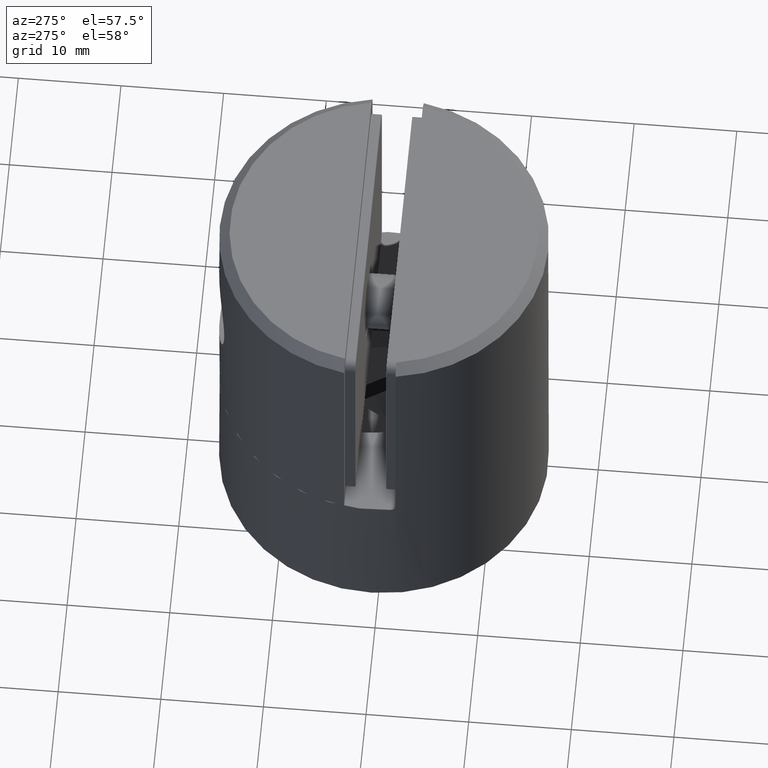
[diagram: clean part render]
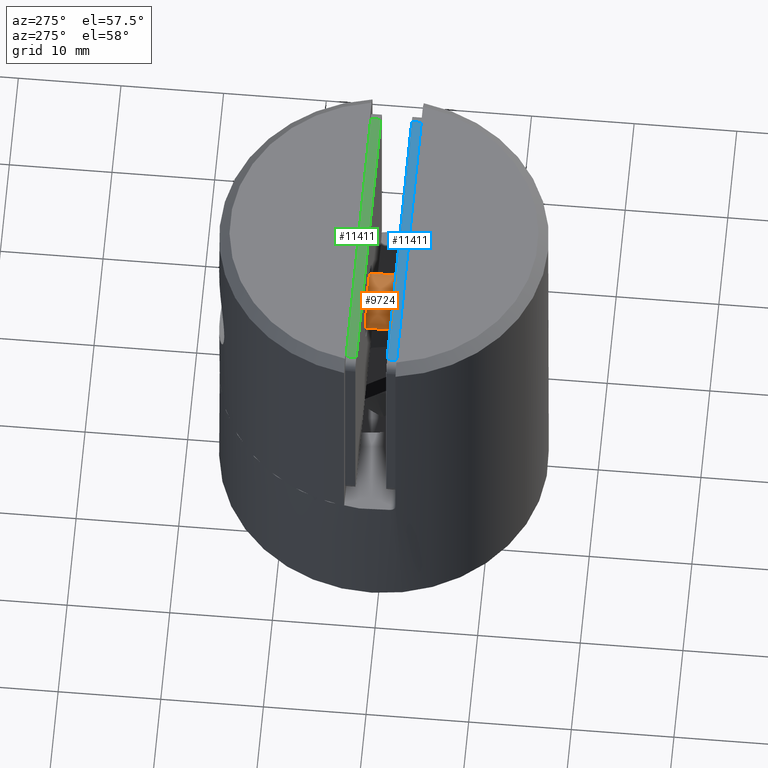
[diagram: same view with three faces highlighted in distinct colors, each labeled with its STEP entity id]
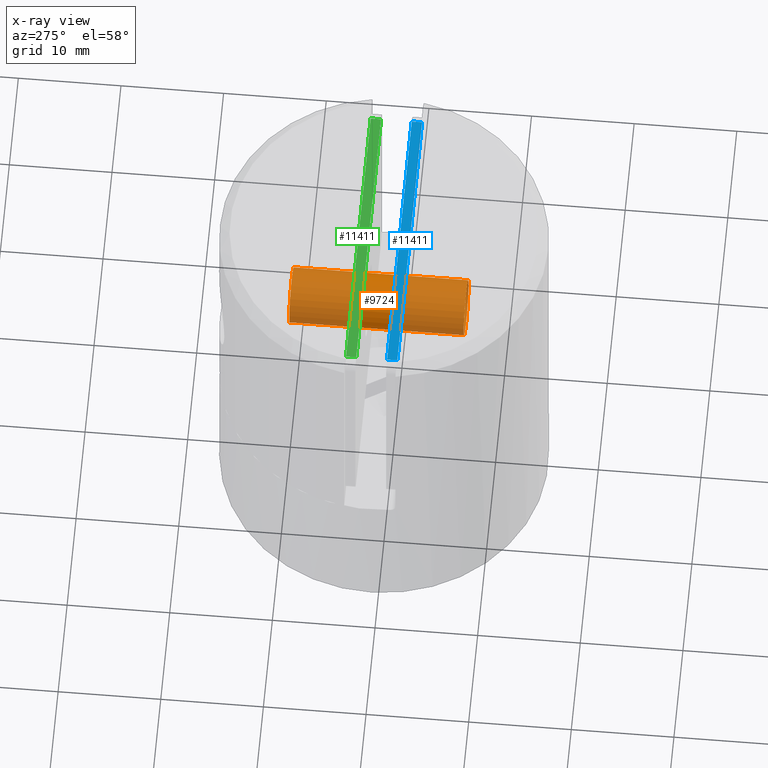
[diagram: x-ray of the same camera — body ghosted, the three highlighted faces saturated]
A machine part, auxiliary view with three faces highlighted in distinct colors.
The next image is the same camera in x-ray (body ghosted, the three faces saturated) — at least one of them is partly hidden behind the body in this view.
Their STEP definitions:

[orange] entity #9724 — the highlighted cylindrical surface (bore or boss wall) has radius 2.675 mm, axis along (0, 1, 0).
#95 = DIRECTION ( 'NONE',  ( 0.000000000000000000, 0.000000000000000000, -1.000000000000000000 ) ) ;
#767 = CIRCLE ( 'NONE', #19645, 2.675000000000001155 ) ;
#1504 = DIRECTION ( 'NONE',  ( 0.000000000000000000, 1.000000000000000000, 0.000000000000000000 ) ) ;
#1946 = EDGE_LOOP ( 'NONE', ( #10276 ) ) ;
#4737 = DIRECTION ( 'NONE',  ( -0.000000000000000000, 1.000000000000000000, -0.000000000000000000 ) ) ;
#5796 = VERTEX_POINT ( 'NONE', #15243 ) ;
#7292 = CARTESIAN_POINT ( 'NONE',  ( 0.000000000000000000, 0.000000000000000000, 0.000000000000000000 ) ) ;
#8434 = EDGE_LOOP ( 'NONE', ( #19678 ) ) ;
#9724 = ADVANCED_FACE ( 'NONE', ( #18892, #12455 ), #16999, .T. ) ;
#10276 = ORIENTED_EDGE ( 'NONE', *, *, #11548, .T. ) ;
#10484 = CIRCLE ( 'NONE', #19667, 2.675000000000001155 ) ;
#11548 = EDGE_CURVE ( 'NONE', #12959, #12959, #767, .T. ) ;
#12455 = FACE_OUTER_BOUND ( 'NONE', #1946, .T. ) ;
#12596 = AXIS2_PLACEMENT_3D ( 'NONE', #13932, #4737, #15190 ) ;
#12959 = VERTEX_POINT ( 'NONE', #16655 ) ;
#13414 = DIRECTION ( 'NONE',  ( -0.000000000000000000, -1.000000000000000000, -0.000000000000000000 ) ) ;
#13932 = CARTESIAN_POINT ( 'NONE',  ( 0.000000000000000000, -18.00000000000000000, 0.000000000000000000 ) ) ;
#15030 = EDGE_CURVE ( 'NONE', #5796, #5796, #10484, .T. ) ;
#15133 = DIRECTION ( 'NONE',  ( 0.000000000000000000, 0.000000000000000000, 1.000000000000000000 ) ) ;
#15190 = DIRECTION ( 'NONE',  ( 0.000000000000000000, 0.000000000000000000, 1.000000000000000000 ) ) ;
#15243 = CARTESIAN_POINT ( 'NONE',  ( 0.000000000000000000, -16.99999999999999645, -2.675000000000001155 ) ) ;
#16556 = CARTESIAN_POINT ( 'NONE',  ( 0.000000000000000000, -16.99999999999999645, 0.000000000000000000 ) ) ;
#16655 = CARTESIAN_POINT ( 'NONE',  ( 0.000000000000000000, 0.000000000000000000, 2.675000000000001155 ) ) ;
#16999 = CYLINDRICAL_SURFACE ( 'NONE', #12596, 2.675000000000001155 ) ;
#18892 = FACE_OUTER_BOUND ( 'NONE', #8434, .T. ) ;
#19645 = AXIS2_PLACEMENT_3D ( 'NONE', #7292, #13414, #15133 ) ;
#19667 = AXIS2_PLACEMENT_3D ( 'NONE', #16556, #1504, #95 ) ;
#19678 = ORIENTED_EDGE ( 'NONE', *, *, #15030, .T. ) ;

[blue] entity #11411 — the highlighted planar face has unit normal (-0, 0, -1).
#1528 = AXIS2_PLACEMENT_3D ( 'NONE', #12814, #6687, #11401 ) ;
#2026 = EDGE_CURVE ( 'NONE', #5939, #11836, #9164, .T. ) ;
#2289 = VERTEX_POINT ( 'NONE', #2313 ) ;
#2313 = CARTESIAN_POINT ( 'NONE',  ( -13.74999999999999822, 0.000000000000000000, 11.24999999999999822 ) ) ;
#2549 = CARTESIAN_POINT ( 'NONE',  ( 13.74999999999999822, 1.000000000000000000, 11.24999999999999822 ) ) ;
#3532 = LINE ( 'NONE', #18861, #9003 ) ;
#3782 = ORIENTED_EDGE ( 'NONE', *, *, #15815, .T. ) ;
#4570 = EDGE_CURVE ( 'NONE', #17247, #11836, #3532, .T. ) ;
#5939 = VERTEX_POINT ( 'NONE', #11631 ) ;
#6274 = DIRECTION ( 'NONE',  ( 1.000000000000000000, 0.000000000000000000, 0.000000000000000000 ) ) ;
#6687 = DIRECTION ( 'NONE',  ( 0.000000000000000000, 0.000000000000000000, -1.000000000000000000 ) ) ;
#6967 = ORIENTED_EDGE ( 'NONE', *, *, #4570, .F. ) ;
#7047 = DIRECTION ( 'NONE',  ( 0.000000000000000000, -1.000000000000000000, 0.000000000000000000 ) ) ;
#8682 = EDGE_CURVE ( 'NONE', #2289, #5939, #12240, .T. ) ;
#8780 = ORIENTED_EDGE ( 'NONE', *, *, #8682, .T. ) ;
#9003 = VECTOR ( 'NONE', #14518, 1000.000000000000000 ) ;
#9164 = LINE ( 'NONE', #2549, #14860 ) ;
#9727 = CARTESIAN_POINT ( 'NONE',  ( 13.74999999999999822, 1.000000000000000000, 11.24999999999999822 ) ) ;
#11401 = DIRECTION ( 'NONE',  ( -1.000000000000000000, 0.000000000000000000, -0.000000000000000000 ) ) ;
#11411 = ADVANCED_FACE ( 'NONE', ( #19103 ), #12890, .F. ) ;
#11418 = CARTESIAN_POINT ( 'NONE',  ( -13.74999999999999822, 1.000000000000000000, 11.24999999999999822 ) ) ;
#11631 = CARTESIAN_POINT ( 'NONE',  ( 13.74999999999999822, 0.000000000000000000, 11.24999999999999822 ) ) ;
#11761 = CARTESIAN_POINT ( 'NONE',  ( -13.74999999999999822, 1.000000000000000000, 11.24999999999999822 ) ) ;
#11836 = VERTEX_POINT ( 'NONE', #9727 ) ;
#12013 = VECTOR ( 'NONE', #6274, 1000.000000000000000 ) ;
#12240 = LINE ( 'NONE', #19663, #12013 ) ;
#12814 = CARTESIAN_POINT ( 'NONE',  ( -14.75000000000000000, 1.000000000000000000, 11.24999999999999822 ) ) ;
#12890 = PLANE ( 'NONE',  #1528 ) ;
#12935 = DIRECTION ( 'NONE',  ( -0.000000000000000000, 1.000000000000000000, -0.000000000000000000 ) ) ;
#14518 = DIRECTION ( 'NONE',  ( 1.000000000000000000, 0.000000000000000000, 0.000000000000000000 ) ) ;
#14860 = VECTOR ( 'NONE', #12935, 1000.000000000000000 ) ;
#15541 = ORIENTED_EDGE ( 'NONE', *, *, #2026, .T. ) ;
#15716 = VECTOR ( 'NONE', #7047, 1000.000000000000000 ) ;
#15815 = EDGE_CURVE ( 'NONE', #17247, #2289, #16913, .T. ) ;
#16913 = LINE ( 'NONE', #11761, #15716 ) ;
#17247 = VERTEX_POINT ( 'NONE', #11418 ) ;
#17414 = EDGE_LOOP ( 'NONE', ( #8780, #15541, #6967, #3782 ) ) ;
#18861 = CARTESIAN_POINT ( 'NONE',  ( -14.75000000000000000, 1.000000000000000000, 11.24999999999999822 ) ) ;
#19103 = FACE_OUTER_BOUND ( 'NONE', #17414, .T. ) ;
#19663 = CARTESIAN_POINT ( 'NONE',  ( -14.75000000000000000, 0.000000000000000000, 11.24999999999999822 ) ) ;

[green] entity #11411 — the highlighted planar face has unit normal (0, 0, -1).
#1528 = AXIS2_PLACEMENT_3D ( 'NONE', #12814, #6687, #11401 ) ;
#2026 = EDGE_CURVE ( 'NONE', #5939, #11836, #9164, .T. ) ;
#2289 = VERTEX_POINT ( 'NONE', #2313 ) ;
#2313 = CARTESIAN_POINT ( 'NONE',  ( -13.74999999999999822, 0.000000000000000000, 11.24999999999999822 ) ) ;
#2549 = CARTESIAN_POINT ( 'NONE',  ( 13.74999999999999822, 1.000000000000000000, 11.24999999999999822 ) ) ;
#3532 = LINE ( 'NONE', #18861, #9003 ) ;
#3782 = ORIENTED_EDGE ( 'NONE', *, *, #15815, .T. ) ;
#4570 = EDGE_CURVE ( 'NONE', #17247, #11836, #3532, .T. ) ;
#5939 = VERTEX_POINT ( 'NONE', #11631 ) ;
#6274 = DIRECTION ( 'NONE',  ( 1.000000000000000000, 0.000000000000000000, 0.000000000000000000 ) ) ;
#6687 = DIRECTION ( 'NONE',  ( 0.000000000000000000, 0.000000000000000000, -1.000000000000000000 ) ) ;
#6967 = ORIENTED_EDGE ( 'NONE', *, *, #4570, .F. ) ;
#7047 = DIRECTION ( 'NONE',  ( 0.000000000000000000, -1.000000000000000000, 0.000000000000000000 ) ) ;
#8682 = EDGE_CURVE ( 'NONE', #2289, #5939, #12240, .T. ) ;
#8780 = ORIENTED_EDGE ( 'NONE', *, *, #8682, .T. ) ;
#9003 = VECTOR ( 'NONE', #14518, 1000.000000000000000 ) ;
#9164 = LINE ( 'NONE', #2549, #14860 ) ;
#9727 = CARTESIAN_POINT ( 'NONE',  ( 13.74999999999999822, 1.000000000000000000, 11.24999999999999822 ) ) ;
#11401 = DIRECTION ( 'NONE',  ( -1.000000000000000000, 0.000000000000000000, -0.000000000000000000 ) ) ;
#11411 = ADVANCED_FACE ( 'NONE', ( #19103 ), #12890, .F. ) ;
#11418 = CARTESIAN_POINT ( 'NONE',  ( -13.74999999999999822, 1.000000000000000000, 11.24999999999999822 ) ) ;
#11631 = CARTESIAN_POINT ( 'NONE',  ( 13.74999999999999822, 0.000000000000000000, 11.24999999999999822 ) ) ;
#11761 = CARTESIAN_POINT ( 'NONE',  ( -13.74999999999999822, 1.000000000000000000, 11.24999999999999822 ) ) ;
#11836 = VERTEX_POINT ( 'NONE', #9727 ) ;
#12013 = VECTOR ( 'NONE', #6274, 1000.000000000000000 ) ;
#12240 = LINE ( 'NONE', #19663, #12013 ) ;
#12814 = CARTESIAN_POINT ( 'NONE',  ( -14.75000000000000000, 1.000000000000000000, 11.24999999999999822 ) ) ;
#12890 = PLANE ( 'NONE',  #1528 ) ;
#12935 = DIRECTION ( 'NONE',  ( -0.000000000000000000, 1.000000000000000000, -0.000000000000000000 ) ) ;
#14518 = DIRECTION ( 'NONE',  ( 1.000000000000000000, 0.000000000000000000, 0.000000000000000000 ) ) ;
#14860 = VECTOR ( 'NONE', #12935, 1000.000000000000000 ) ;
#15541 = ORIENTED_EDGE ( 'NONE', *, *, #2026, .T. ) ;
#15716 = VECTOR ( 'NONE', #7047, 1000.000000000000000 ) ;
#15815 = EDGE_CURVE ( 'NONE', #17247, #2289, #16913, .T. ) ;
#16913 = LINE ( 'NONE', #11761, #15716 ) ;
#17247 = VERTEX_POINT ( 'NONE', #11418 ) ;
#17414 = EDGE_LOOP ( 'NONE', ( #8780, #15541, #6967, #3782 ) ) ;
#18861 = CARTESIAN_POINT ( 'NONE',  ( -14.75000000000000000, 1.000000000000000000, 11.24999999999999822 ) ) ;
#19103 = FACE_OUTER_BOUND ( 'NONE', #17414, .T. ) ;
#19663 = CARTESIAN_POINT ( 'NONE',  ( -14.75000000000000000, 0.000000000000000000, 11.24999999999999822 ) ) ;